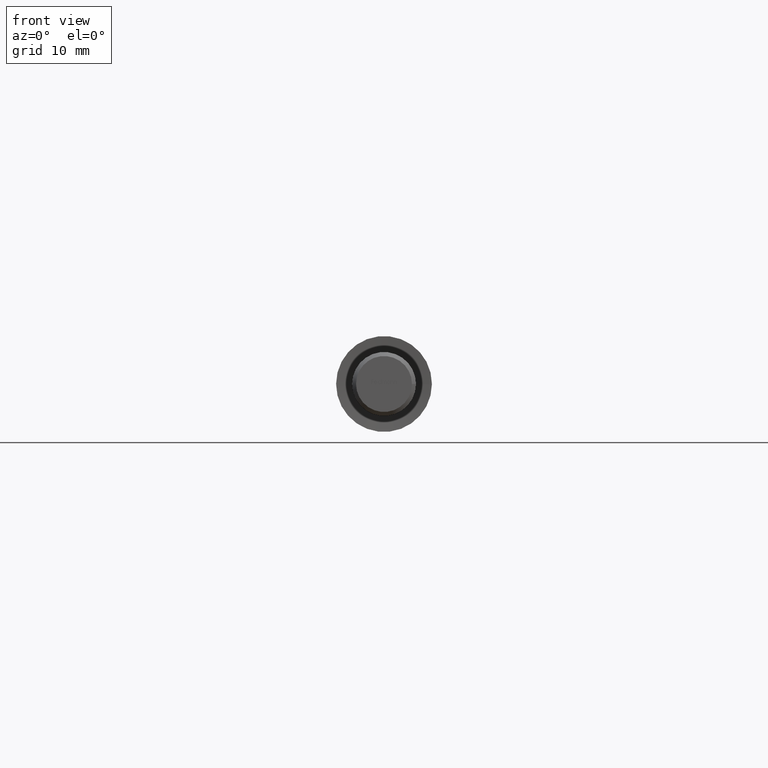
[diagram: clean part render]
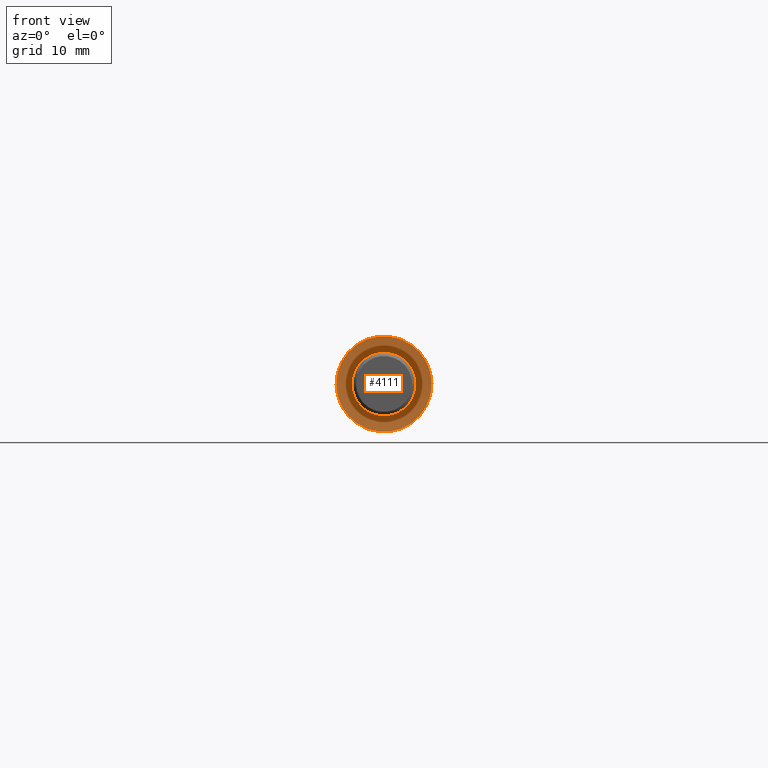
[diagram: same view with one face highlighted and labeled with its STEP entity id]
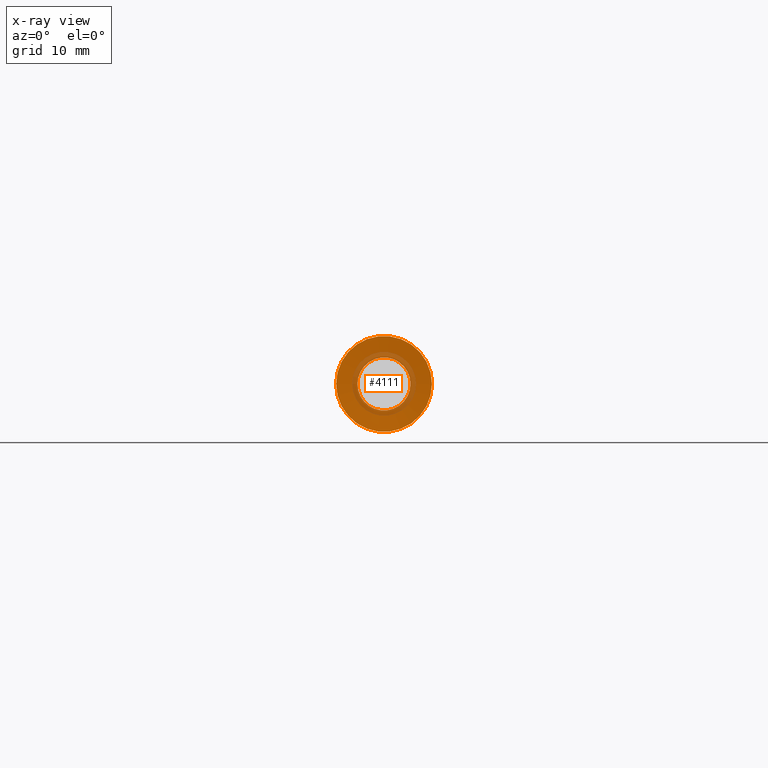
[diagram: x-ray of the same camera — body ghosted, the highlighted face saturated]
A machine part, front view. The second image highlights one B-rep face of the part: STEP entity #4111.
The next image is the same camera in x-ray: the body ghosted, the highlighted face saturated — about 20% of this face is hidden behind the body in this view.
In plain terms, the highlighted conical surface has half-angle 85 deg.
Its self-contained STEP definition (entity closure, byte-faithful):
#89 = FACE_OUTER_BOUND ( 'NONE', #8290, .T. ) ;
#252 = CONICAL_SURFACE ( 'NONE', #10954, 3.320072066050799187, 1.483529864195179737 ) ;
#361 = VERTEX_POINT ( 'NONE', #2512 ) ;
#2512 = CARTESIAN_POINT ( 'NONE',  ( 6.000000000000009770, 1.283953296258159242E-32, 0.000000000000000000 ) ) ;
#3103 = CARTESIAN_POINT ( 'NONE',  ( 1.599924287923588925E-31, 0.2344633132870081738, 0.000000000000000000 ) ) ;
#3898 = AXIS2_PLACEMENT_3D ( 'NONE', #9135, #8027, #3971 ) ;
#3971 = DIRECTION ( 'NONE',  ( 1.000000000000000000, 2.139922160430261983E-33, 0.000000000000000000 ) ) ;
#4111 = ADVANCED_FACE ( 'NONE', ( #89, #10420 ), #252, .F. ) ;
#4282 = EDGE_CURVE ( 'NONE', #8741, #8741, #11921, .T. ) ;
#5226 = DIRECTION ( 'NONE',  ( 1.000000000000000000, 0.000000000000000000, 0.000000000000000000 ) ) ;
#5516 = DIRECTION ( 'NONE',  ( 2.139922160430262325E-33, -1.000000000000000000, -0.000000000000000000 ) ) ;
#5755 = AXIS2_PLACEMENT_3D ( 'NONE', #7626, #5516, #8493 ) ;
#6247 = DIRECTION ( 'NONE',  ( 2.139922160430262325E-33, -1.000000000000000000, -0.000000000000000000 ) ) ;
#6744 = CARTESIAN_POINT ( 'NONE',  ( 3.320072066050799187, 0.2344633132870081738, 0.000000000000000000 ) ) ;
#7626 = CARTESIAN_POINT ( 'NONE',  ( 1.599924287923588925E-31, 0.2344633132870081738, 0.000000000000000000 ) ) ;
#8027 = DIRECTION ( 'NONE',  ( 2.139922160430262325E-33, -1.000000000000000000, -0.000000000000000000 ) ) ;
#8290 = EDGE_LOOP ( 'NONE', ( #9467 ) ) ;
#8493 = DIRECTION ( 'NONE',  ( 1.000000000000000000, 0.000000000000000000, 0.000000000000000000 ) ) ;
#8741 = VERTEX_POINT ( 'NONE', #6744 ) ;
#8960 = CIRCLE ( 'NONE', #3898, 6.000000000000009770 ) ;
#9135 = CARTESIAN_POINT ( 'NONE',  ( 1.604941620322696398E-31, 0.000000000000000000, 0.000000000000000000 ) ) ;
#9309 = EDGE_LOOP ( 'NONE', ( #10643 ) ) ;
#9467 = ORIENTED_EDGE ( 'NONE', *, *, #11148, .T. ) ;
#10420 = FACE_BOUND ( 'NONE', #9309, .T. ) ;
#10643 = ORIENTED_EDGE ( 'NONE', *, *, #4282, .F. ) ;
#10954 = AXIS2_PLACEMENT_3D ( 'NONE', #3103, #6247, #5226 ) ;
#11148 = EDGE_CURVE ( 'NONE', #361, #361, #8960, .T. ) ;
#11921 = CIRCLE ( 'NONE', #5755, 3.320072066050799187 ) ;